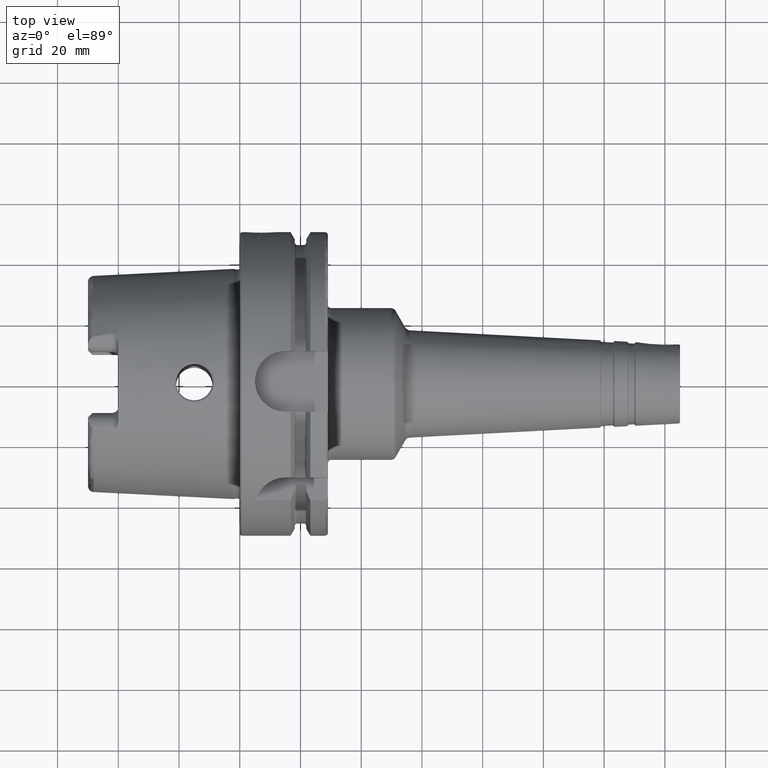
[diagram: clean part render]
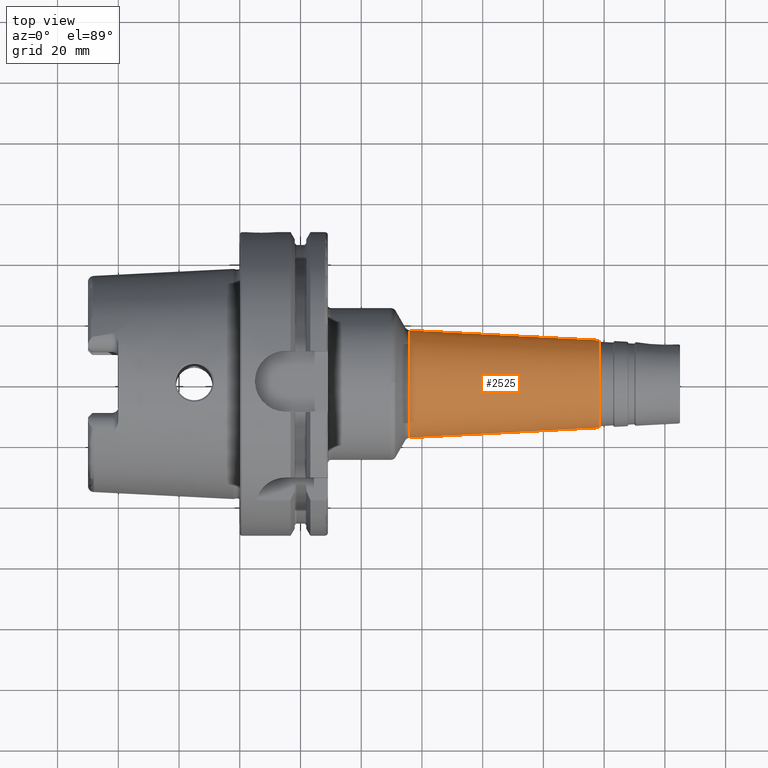
[diagram: same view with one face highlighted and labeled with its STEP entity id]
A machine part, top view. The second image highlights one B-rep face of the part: STEP entity #2525.
In plain terms, the highlighted conical surface has half-angle 3 deg.
Its self-contained STEP definition (entity closure, byte-faithful):
#101=CONICAL_SURFACE('',#2750,16.0461245134913,0.05235987755983);
#183=LINE('',#4054,#297);
#297=VECTOR('',#3227,16.0461245134913);
#448=FACE_OUTER_BOUND('',#583,.T.);
#583=EDGE_LOOP('',(#1795,#1796,#1797,#1798,#1799,#1800,#1801,#1802));
#776=CIRCLE('',#2747,14.387635362879);
#777=CIRCLE('',#2748,14.387635362879);
#778=CIRCLE('',#2749,14.387635362879);
#779=CIRCLE('',#2751,17.6598679239974);
#780=CIRCLE('',#2752,17.6598679239974);
#781=CIRCLE('',#2753,17.6598679239974);
#1001=VERTEX_POINT('',#4045);
#1002=VERTEX_POINT('',#4047);
#1003=VERTEX_POINT('',#4049);
#1004=VERTEX_POINT('',#4053);
#1005=VERTEX_POINT('',#4055);
#1006=VERTEX_POINT('',#4057);
#1308=EDGE_CURVE('',#1001,#1002,#776,.T.);
#1309=EDGE_CURVE('',#1002,#1003,#777,.T.);
#1310=EDGE_CURVE('',#1003,#1001,#778,.T.);
#1311=EDGE_CURVE('',#1002,#1004,#183,.T.);
#1312=EDGE_CURVE('',#1005,#1004,#779,.T.);
#1313=EDGE_CURVE('',#1006,#1005,#780,.T.);
#1314=EDGE_CURVE('',#1004,#1006,#781,.T.);
#1795=ORIENTED_EDGE('',*,*,#1310,.F.);
#1796=ORIENTED_EDGE('',*,*,#1309,.F.);
#1797=ORIENTED_EDGE('',*,*,#1311,.T.);
#1798=ORIENTED_EDGE('',*,*,#1312,.F.);
#1799=ORIENTED_EDGE('',*,*,#1313,.F.);
#1800=ORIENTED_EDGE('',*,*,#1314,.F.);
#1801=ORIENTED_EDGE('',*,*,#1311,.F.);
#1802=ORIENTED_EDGE('',*,*,#1308,.F.);
#2525=ADVANCED_FACE('',(#448),#101,.T.);
#2747=AXIS2_PLACEMENT_3D('',#4048,#3219,#3220);
#2748=AXIS2_PLACEMENT_3D('',#4050,#3221,#3222);
#2749=AXIS2_PLACEMENT_3D('',#4051,#3223,#3224);
#2750=AXIS2_PLACEMENT_3D('',#4052,#3225,#3226);
#2751=AXIS2_PLACEMENT_3D('',#4056,#3228,#3229);
#2752=AXIS2_PLACEMENT_3D('',#4058,#3230,#3231);
#2753=AXIS2_PLACEMENT_3D('',#4059,#3232,#3233);
#3219=DIRECTION('center_axis',(1.,0.,0.));
#3220=DIRECTION('ref_axis',(0.,-1.,3.06161699786838E-17));
#3221=DIRECTION('center_axis',(1.,0.,0.));
#3222=DIRECTION('ref_axis',(0.,-1.,3.06161699786838E-17));
#3223=DIRECTION('center_axis',(1.,0.,0.));
#3224=DIRECTION('ref_axis',(0.,-1.,3.06161699786838E-17));
#3225=DIRECTION('center_axis',(-1.,0.,0.));
#3226=DIRECTION('ref_axis',(0.,1.,0.));
#3227=DIRECTION('',(-0.998629534754574,-0.0523359562429439,-6.40930612932372E-18));
#3228=DIRECTION('center_axis',(-1.,0.,0.));
#3229=DIRECTION('ref_axis',(0.,-1.,3.06161699786838E-17));
#3230=DIRECTION('center_axis',(-1.,0.,0.));
#3231=DIRECTION('ref_axis',(0.,-1.,3.06161699786838E-17));
#3232=DIRECTION('center_axis',(-1.,0.,0.));
#3233=DIRECTION('ref_axis',(0.,-1.,3.06161699786838E-17));
#4045=CARTESIAN_POINT('',(118.522339968181,-1.7619771594449E-15,14.387635362879));
#4047=CARTESIAN_POINT('',(118.522339968181,-14.387635362879,-1.7619771594449E-15));
#4048=CARTESIAN_POINT('Origin',(118.522339968181,0.,-2.20247144930613E-15));
#4049=CARTESIAN_POINT('',(118.522339968181,14.387635362879,-8.8098857972245E-16));
#4050=CARTESIAN_POINT('Origin',(118.522339968181,0.,-2.20247144930613E-15));
#4051=CARTESIAN_POINT('Origin',(118.522339968181,0.,-2.20247144930613E-15));
#4052=CARTESIAN_POINT('Origin',(86.8764817902327,0.,0.));
#4053=CARTESIAN_POINT('',(56.0844231954446,-17.6598679239974,-2.16271007264885E-15));
#4054=CARTESIAN_POINT('',(86.8764817902327,-16.0461245134913,-1.9650835024167E-15));
#4055=CARTESIAN_POINT('',(56.0844231954446,17.6598679239974,-5.40677518162212E-15));
#4056=CARTESIAN_POINT('Origin',(56.0844231954446,0.,-2.70338759081106E-15));
#4057=CARTESIAN_POINT('',(56.0844231954446,-2.16271007264885E-15,17.6598679239974));
#4058=CARTESIAN_POINT('Origin',(56.0844231954446,0.,-2.70338759081106E-15));
#4059=CARTESIAN_POINT('Origin',(56.0844231954446,0.,-2.70338759081106E-15));